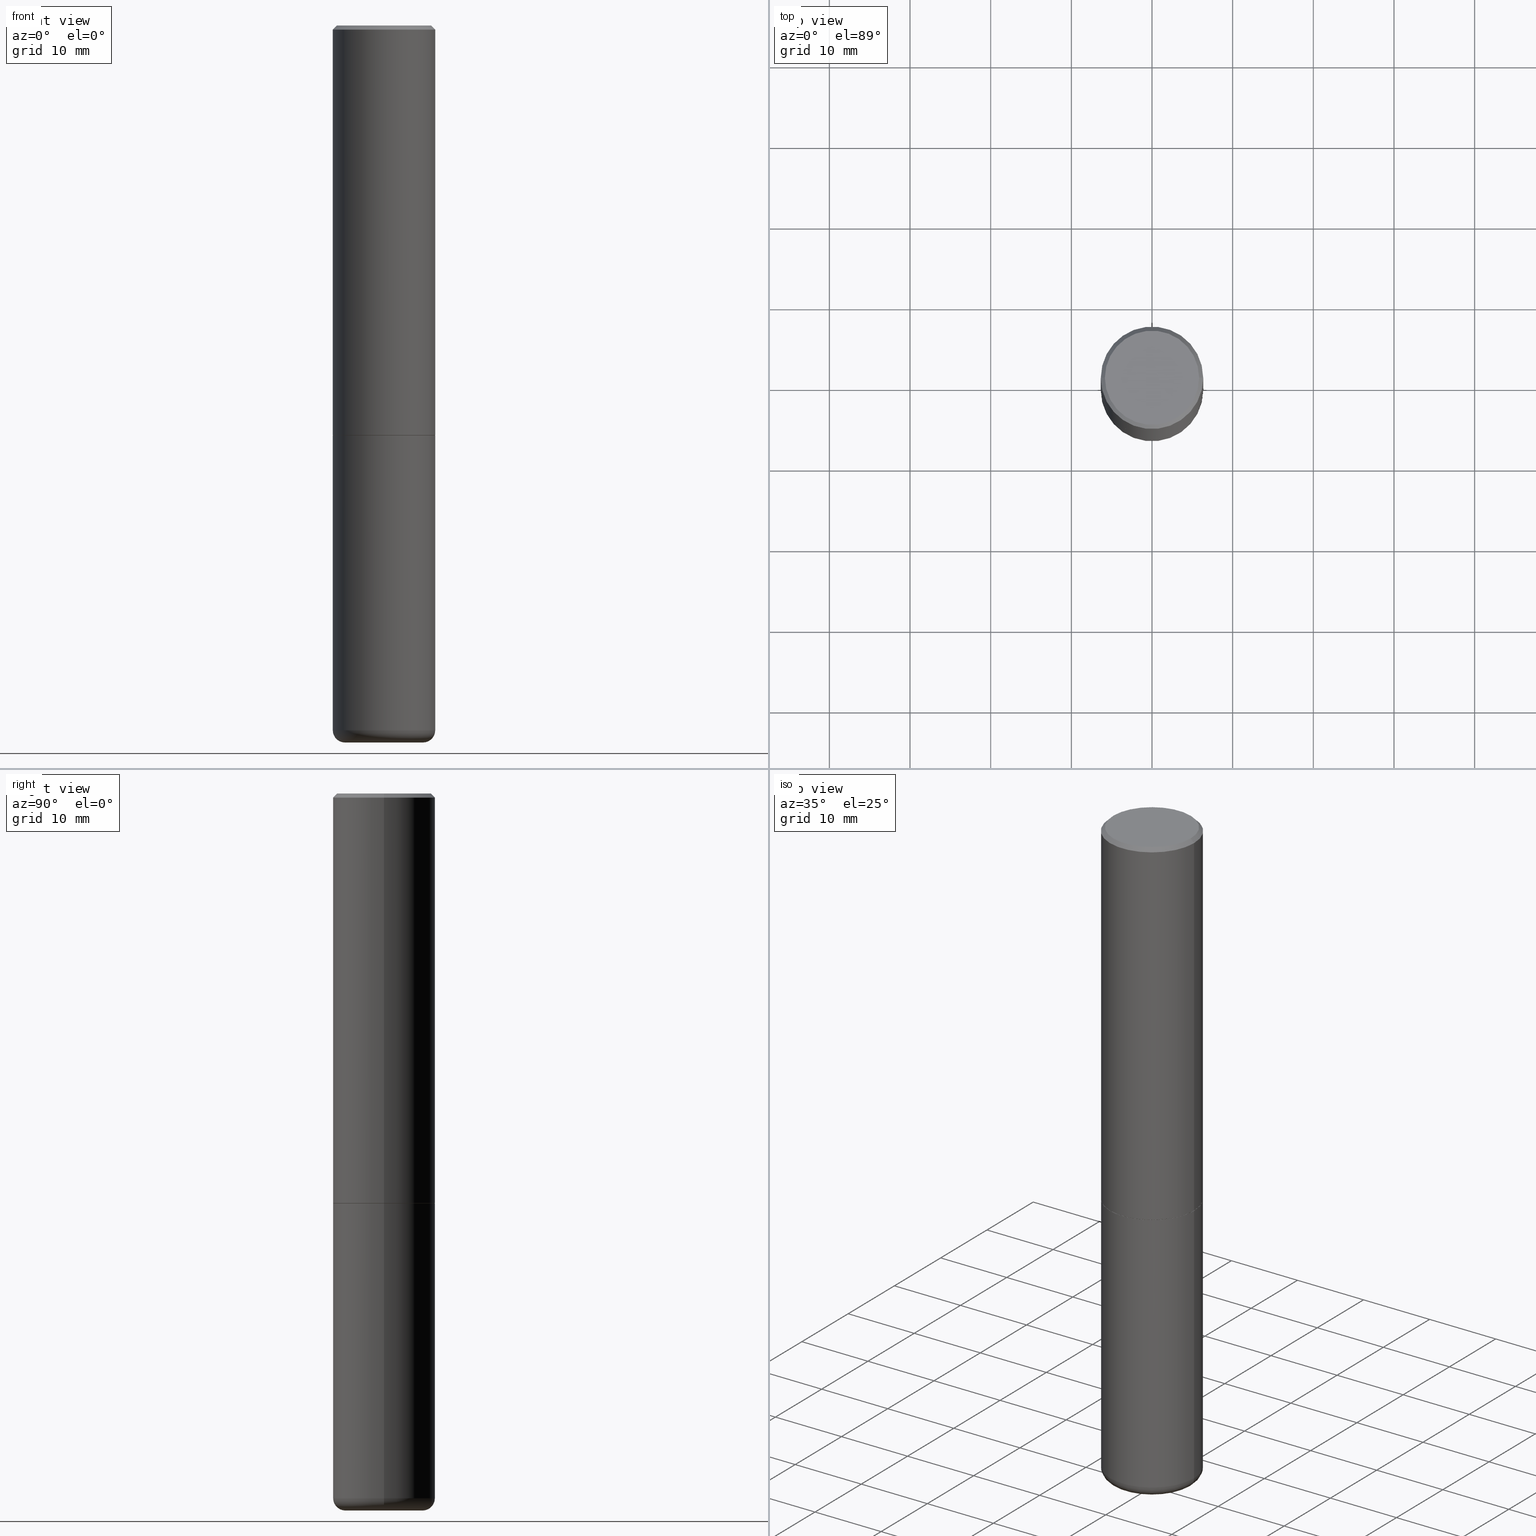
[diagram: canonical four-view strip — front | top / right | iso, engineering-drawing reading convention]
A machine part, canonical four-view strip (front | top / right | iso — engineering-drawing reading convention). The complete STEP part file that produces these views, byte-faithful:
ISO-10303-21;
HEADER;
FILE_DESCRIPTION (( 'STEP AP203' ),
    '1' );
FILE_NAME ('77192.STEP',
    '2024-03-06T16:21:48',
    ( '' ),
    ( '' ),
    'SwSTEP 2.0',
    'SolidWorks 2023',
    '' );
FILE_SCHEMA (( 'CONFIG_CONTROL_DESIGN' ));
ENDSEC;

DATA;
#1 = DIRECTION ( 'NONE',  ( -0.7071067811866199593, 7.493145998870616062E-15, 0.7071067811864750752 ) ) ;
#2 = VERTEX_POINT ( 'NONE', #172 ) ;
#3 = COORDINATED_UNIVERSAL_TIME_OFFSET ( 5, 0, .BEHIND. ) ;
#4 = DIRECTION ( 'NONE',  ( 1.000000000000000000, -6.982962677686266711E-15, 4.876176775795935793E-29 ) ) ;
#5 = ORIENTED_EDGE ( 'NONE', *, *, #243, .T. ) ;
#6 = ADVANCED_FACE ( 'NONE', ( #303 ), #402, .T. ) ;
#7 = LINE ( 'NONE', #395, #387 ) ;
#8 =( NAMED_UNIT ( * ) PLANE_ANGLE_UNIT ( ) SI_UNIT ( $, .RADIAN. ) );
#9 = FACE_OUTER_BOUND ( 'NONE', #35, .T. ) ;
#10 = VERTEX_POINT ( 'NONE', #368 ) ;
#11 = APPROVAL_STATUS ( 'not_yet_approved' ) ;
#12 = APPLICATION_PROTOCOL_DEFINITION ( 'international standard', 'config_control_design', 1994, #33 ) ;
#13 = SECURITY_CLASSIFICATION ( '', '', #304 ) ;
#14 = DIRECTION ( 'NONE',  ( -1.000000000000000000, 6.982962677686265922E-15, -4.876176775795935793E-29 ) ) ;
#15 = CARTESIAN_POINT ( 'NONE',  ( 4.890937612370273194E-29, -6.982962677686291165E-15, -2.000000000000000000 ) ) ;
#16 = APPROVAL_ROLE ( '' ) ;
#17 = DIRECTION ( 'NONE',  ( 0.7071067811866199593, -2.468850131083015945E-15, 0.7071067811864750752 ) ) ;
#18 = CARTESIAN_POINT ( 'NONE',  ( -0.2489999999999999991, -5.208412811295418518E-15, -2.000000000000000000 ) ) ;
#19 = APPROVAL_DATE_TIME ( #377, #199 ) ;
#20 = MANIFOLD_SOLID_BREP ( 'Body-Move/Copy2[1]', #90 ) ;
#21 = DIRECTION ( 'NONE',  ( 1.000000000000000000, -6.982962677686266711E-15, 0.000000000000000000 ) ) ;
#22 = EDGE_CURVE ( 'NONE', #299, #261, #34, .T. ) ;
#23 = DIRECTION ( 'NONE',  ( 1.000000000000000000, -6.982962677686267499E-15, 0.000000000000000000 ) ) ;
#24 = MANIFOLD_SOLID_BREP ( 'Body-Move/Copy2[2]', #164 ) ;
#25 = PLANE ( 'NONE',  #31 ) ;
#26 = ADVANCED_FACE ( 'NONE', ( #168 ), #369, .F. ) ;
#27 = AXIS2_PLACEMENT_3D ( 'NONE', #132, #106, #406 ) ;
#28 = CONICAL_SURFACE ( 'NONE', #320, 0.2489999999999999991, 0.7853981633975507526 ) ;
#29 = ORIENTED_EDGE ( 'NONE', *, *, #344, .F. ) ;
#30 = AXIS2_PLACEMENT_3D ( 'NONE', #50, #308, #141 ) ;
#31 = AXIS2_PLACEMENT_3D ( 'NONE', #408, #53, #276 ) ;
#32 = ORIENTED_EDGE ( 'NONE', *, *, #291, .T. ) ;
#33 = APPLICATION_CONTEXT ( 'configuration controlled 3d designs of mechanical parts and assemblies' ) ;
#34 = LINE ( 'NONE', #42, #176 ) ;
#35 = EDGE_LOOP ( 'NONE', ( #72, #133, #362, #169 ) ) ;
#36 = DIRECTION ( 'NONE',  ( 0.000000000000000000, 0.000000000000000000, 1.000000000000000000 ) ) ;
#37 = FACE_OUTER_BOUND ( 'NONE', #349, .T. ) ;
#38 = VERTEX_POINT ( 'NONE', #77 ) ;
#39 = CIRCLE ( 'NONE', #275, 0.2500000000000000000 ) ;
#40 = AXIS2_PLACEMENT_3D ( 'NONE', #206, #48, #213 ) ;
#41 = APPROVAL_DATE_TIME ( #228, #253 ) ;
#42 = CARTESIAN_POINT ( 'NONE',  ( -0.2500000000000000000, 1.776356839400250465E-15, -1.229733772563726445E-29 ) ) ;
#43 = ORIENTED_EDGE ( 'NONE', *, *, #389, .T. ) ;
#44 = DIRECTION ( 'NONE',  ( -2.445468806185136597E-29, 3.491481338843145583E-15, 1.000000000000000000 ) ) ;
#45 = CARTESIAN_POINT ( 'NONE',  ( 0.000000000000000000, 0.000000000000000000, 0.000000000000000000 ) ) ;
#46 = COORDINATED_UNIVERSAL_TIME_OFFSET ( 5, 0, .BEHIND. ) ;
#47 = DIRECTION ( 'NONE',  ( -2.445468806185136597E-29, 3.491481338843145583E-15, 1.000000000000000000 ) ) ;
#48 = DIRECTION ( 'NONE',  ( -2.445468806185136597E-29, 3.491481338843145583E-15, 1.000000000000000000 ) ) ;
#49 = CIRCLE ( 'NONE', #281, 0.2499999999999999167 ) ;
#50 = CARTESIAN_POINT ( 'NONE',  ( 4.890937612370273194E-29, -6.982962677686291165E-15, -2.000000000000000000 ) ) ;
#51 = LINE ( 'NONE', #246, #212 ) ;
#52 = CARTESIAN_POINT ( 'NONE',  ( 4.888492143564087591E-29, -6.979471196347447369E-15, -1.998999999999999888 ) ) ;
#53 = DIRECTION ( 'NONE',  ( 2.438088387897960049E-29, -3.491481338843145188E-15, -1.000000000000000000 ) ) ;
#54 = CARTESIAN_POINT ( 'NONE',  ( 8.412412693276869938E-29, -1.201069580562042103E-14, -3.439999999999999947 ) ) ;
#55 = AXIS2_PLACEMENT_3D ( 'NONE', #394, #44, #399 ) ;
#56 = VERTEX_POINT ( 'NONE', #208 ) ;
#57 = PLANE ( 'NONE',  #83 ) ;
#58 = ADVANCED_FACE ( 'NONE', ( #9 ), #100, .T. ) ;
#59 = DIRECTION ( 'NONE',  ( -0.7071067811865465735, 2.468850131082246805E-15, -0.7071067811865484609 ) ) ;
#60 = CONICAL_SURFACE ( 'NONE', #244, 0.2499999999999999167, 0.7853981633974469467 ) ;
#61 = AXIS2_PLACEMENT_3D ( 'NONE', #352, #178, #91 ) ;
#62 = ADVANCED_FACE ( 'NONE', ( #37 ), #328, .T. ) ;
#63 = ADVANCED_FACE ( 'NONE', ( #340 ), #398, .T. ) ;
#64 = ORIENTED_EDGE ( 'NONE', *, *, #403, .F. ) ;
#65 = LINE ( 'NONE', #289, #138 ) ;
#66 = VERTEX_POINT ( 'NONE', #162 ) ;
#67 = CIRCLE ( 'NONE', #397, 0.2299999999999999267 ) ;
#68 = AXIS2_PLACEMENT_3D ( 'NONE', #400, #114, #279 ) ;
#69 = DIRECTION ( 'NONE',  ( 1.000000000000000000, -6.982962677686266711E-15, 0.000000000000000000 ) ) ;
#70 = ORIENTED_EDGE ( 'NONE', *, *, #411, .F. ) ;
#71 = ADVANCED_FACE ( 'NONE', ( #171 ), #111, .T. ) ;
#72 = ORIENTED_EDGE ( 'NONE', *, *, #89, .F. ) ;
#73 = ORIENTED_EDGE ( 'NONE', *, *, #403, .T. ) ;
#74 = DIRECTION ( 'NONE',  ( -2.445468806185136877E-29, 3.491481338843145188E-15, 1.000000000000000000 ) ) ;
#75 = AXIS2_PLACEMENT_3D ( 'NONE', #52, #346, #21 ) ;
#76 = EDGE_CURVE ( 'NONE', #255, #38, #305, .T. ) ;
#77 = CARTESIAN_POINT ( 'NONE',  ( -0.2500000000000002776, -1.748293572161900530E-15, -1.998999999999999888 ) ) ;
#78 = COORDINATED_UNIVERSAL_TIME_OFFSET ( 5, 0, .BEHIND. ) ;
#79 = EDGE_LOOP ( 'NONE', ( #415, #43, #73, #288 ) ) ;
#80 = CARTESIAN_POINT ( 'NONE',  ( 0.1899999999999999745, -1.333745871438081265E-14, -3.439999999999999947 ) ) ;
#81 = APPROVAL ( #11, 'UNSPECIFIED' ) ;
#82 = ADVANCED_BREP_SHAPE_REPRESENTATION ( '77192', ( #20, #24, #122 ), #189 ) ;
#83 = AXIS2_PLACEMENT_3D ( 'NONE', #118, #180, #86 ) ;
#84 = CC_DESIGN_SECURITY_CLASSIFICATION ( #13, ( #251 ) ) ;
#85 = CARTESIAN_POINT ( 'NONE',  ( -0.2500000000000000000, -7.720472402253106025E-15, -2.000000000000000000 ) ) ;
#86 = DIRECTION ( 'NONE',  ( 1.000000000000000000, -6.982962677686265922E-15, 4.876176775795935793E-29 ) ) ;
#87 = CARTESIAN_POINT ( 'NONE',  ( 4.890937612370287172E-31, -6.982962677686310098E-17, -0.02000000000000005593 ) ) ;
#88 = CALENDAR_DATE ( 2024, 6, 3 ) ;
#89 = EDGE_CURVE ( 'NONE', #2, #299, #374, .T. ) ;
#90 = CLOSED_SHELL ( 'NONE', ( #412, #371, #26, #63, #58, #62 ) ) ;
#91 = DIRECTION ( 'NONE',  ( 1.000000000000000000, -6.982962677686273021E-15, 0.000000000000000000 ) ) ;
#92 = CIRCLE ( 'NONE', #61, 0.1899999999999999745 ) ;
#93 = CIRCLE ( 'NONE', #237, 0.2489999999999999991 ) ;
#94 = EDGE_CURVE ( 'NONE', #123, #261, #258, .T. ) ;
#95 = CARTESIAN_POINT ( 'NONE',  ( 0.2489999999999999991, -8.721720384430171040E-15, -2.000000000000000000 ) ) ;
#96 = ORIENTED_EDGE ( 'NONE', *, *, #76, .T. ) ;
#97 = EDGE_LOOP ( 'NONE', ( #233, #163, #333, #209 ) ) ;
#98 = EDGE_CURVE ( 'NONE', #198, #224, #250, .T. ) ;
#99 = ORIENTED_EDGE ( 'NONE', *, *, #220, .F. ) ;
#100 = TOROIDAL_SURFACE ( 'NONE', #409, 0.1899999999999999745, 0.05999999999999995615 ) ;
#101 = AXIS2_PLACEMENT_3D ( 'NONE', #314, #375, #23 ) ;
#102 = PERSON_AND_ORGANIZATION ( #152, #286 ) ;
#103 = ORIENTED_EDGE ( 'NONE', *, *, #380, .T. ) ;
#104 = CARTESIAN_POINT ( 'NONE',  ( 2.087702828670439639E-46, -2.980686340760894400E-32, -8.537024980200822558E-18 ) ) ;
#105 = DATE_AND_TIME ( #392, #358 ) ;
#106 = DIRECTION ( 'NONE',  ( -2.445468806185136597E-29, 3.491481338843145583E-15, 1.000000000000000000 ) ) ;
#107 = ORIENTED_EDGE ( 'NONE', *, *, #98, .T. ) ;
#108 = DIRECTION ( 'NONE',  ( 1.000000000000000000, -6.982962677686265133E-15, 4.883557194083112340E-29 ) ) ;
#109 = CIRCLE ( 'NONE', #404, 0.2500000000000002776 ) ;
#110 = PERSON_AND_ORGANIZATION_ROLE ( 'classification_officer' ) ;
#111 = CYLINDRICAL_SURFACE ( 'NONE', #379, 0.2500000000000001110 ) ;
#112 = MECHANICAL_CONTEXT ( 'NONE', #33, 'mechanical' ) ;
#113 = ADVANCED_FACE ( 'NONE', ( #116 ), #57, .F. ) ;
#114 = DIRECTION ( 'NONE',  ( -2.445468806185136597E-29, 3.491481338843145583E-15, 1.000000000000000000 ) ) ;
#115 = CIRCLE ( 'NONE', #30, 0.2500000000000000000 ) ;
#116 = FACE_OUTER_BOUND ( 'NONE', #256, .T. ) ;
#117 = DIRECTION ( 'NONE',  ( 1.000000000000000000, -6.982962677686274599E-15, 0.000000000000000000 ) ) ;
#118 = CARTESIAN_POINT ( 'NONE',  ( 4.890937612370273194E-29, -6.982962677686291165E-15, -2.000000000000000000 ) ) ;
#119 = AXIS2_PLACEMENT_3D ( 'NONE', #332, #137, #301 ) ;
#120 = LOCAL_TIME ( 11, 21, 48.00000000000000000, #238 ) ;
#121 = ORIENTED_EDGE ( 'NONE', *, *, #267, .F. ) ;
#122 = AXIS2_PLACEMENT_3D ( 'NONE', #338, #36, #196 ) ;
#123 = VERTEX_POINT ( 'NONE', #187 ) ;
#124 = UNCERTAINTY_MEASURE_WITH_UNIT (LENGTH_MEASURE( 1.000000000000000082E-05 ), #201, 'distance_accuracy_value', 'NONE');
#125 = ORIENTED_EDGE ( 'NONE', *, *, #291, .F. ) ;
#126 = CARTESIAN_POINT ( 'NONE',  ( 0.2500000000000001110, -1.745740669421567467E-15, 1.219044193948984509E-29 ) ) ;
#127 = CARTESIAN_POINT ( 'NONE',  ( -0.1899999999999999745, -1.066066460767623105E-14, -3.439999999999999947 ) ) ;
#128 = EDGE_LOOP ( 'NONE', ( #383, #96, #359, #190 ) ) ;
#129 = AXIS2_PLACEMENT_3D ( 'NONE', #45, #47, #4 ) ;
#130 = DIRECTION ( 'NONE',  ( -2.445468806185136597E-29, 3.491481338843145583E-15, 1.000000000000000000 ) ) ;
#131 = CALENDAR_DATE ( 2024, 6, 3 ) ;
#132 = CARTESIAN_POINT ( 'NONE',  ( 2.087702828670439639E-46, -2.980686340760894400E-32, -8.537024980200822558E-18 ) ) ;
#133 = ORIENTED_EDGE ( 'NONE', *, *, #267, .T. ) ;
#134 = CYLINDRICAL_SURFACE ( 'NONE', #55, 0.2500000000000000000 ) ;
#135 = CARTESIAN_POINT ( 'NONE',  ( 0.000000000000000000, 0.000000000000000000, 0.000000000000000000 ) ) ;
#136 = EDGE_LOOP ( 'NONE', ( #283, #107 ) ) ;
#137 = DIRECTION ( 'NONE',  ( 2.438088387897960049E-29, -3.491481338843145188E-15, -1.000000000000000000 ) ) ;
#138 = VECTOR ( 'NONE', #59, 39.37007874015748143 ) ;
#139 = APPROVAL_ROLE ( '' ) ;
#140 = ADVANCED_FACE ( 'NONE', ( #144 ), #60, .T. ) ;
#141 = DIRECTION ( 'NONE',  ( 1.000000000000000000, -6.982962677686266711E-15, 0.000000000000000000 ) ) ;
#142 = FACE_OUTER_BOUND ( 'NONE', #79, .T. ) ;
#143 = VECTOR ( 'NONE', #191, 39.37007874015748143 ) ;
#144 = FACE_OUTER_BOUND ( 'NONE', #391, .T. ) ;
#145 = ADVANCED_FACE ( 'NONE', ( #142 ), #405, .T. ) ;
#146 = DIRECTION ( 'NONE',  ( 1.000000000000000000, -6.982962677686266711E-15, 0.000000000000000000 ) ) ;
#147 = DIRECTION ( 'NONE',  ( 1.000000000000000000, -6.982962677686270655E-15, 0.000000000000000000 ) ) ;
#148 = CC_DESIGN_DATE_AND_TIME_ASSIGNMENT ( #173, #370, ( #225 ) ) ;
#149 = AXIS2_PLACEMENT_3D ( 'NONE', #390, #229, #297 ) ;
#150 = CIRCLE ( 'NONE', #298, 0.2489999999999999991 ) ;
#151 = EDGE_CURVE ( 'NONE', #414, #299, #39, .T. ) ;
#152 = PERSON ( 'UNSPECIFIED', 'UNSPECIFIED', 'UNSPECIFIED', ('UNSPECIFIED'), ('UNSPECIFIED'), ('UNSPECIFIED') ) ;
#153 = DIRECTION ( 'NONE',  ( 1.000000000000000000, -6.982962677686266711E-15, 0.000000000000000000 ) ) ;
#154 = AXIS2_PLACEMENT_3D ( 'NONE', #210, #158, #14 ) ;
#155 = AXIS2_PLACEMENT_3D ( 'NONE', #54, #241, #277 ) ;
#156 = EDGE_LOOP ( 'NONE', ( #157, #32 ) ) ;
#157 = ORIENTED_EDGE ( 'NONE', *, *, #94, .T. ) ;
#158 = DIRECTION ( 'NONE',  ( 2.438088387897960049E-29, -3.491481338843145188E-15, -1.000000000000000000 ) ) ;
#159 = ORIENTED_EDGE ( 'NONE', *, *, #76, .F. ) ;
#160 = PRODUCT_RELATED_PRODUCT_CATEGORY ( 'detail', '', ( #183 ) ) ;
#161 = APPROVAL_ROLE ( '' ) ;
#162 = CARTESIAN_POINT ( 'NONE',  ( 0.2500000000000002776, -8.725211865769015625E-15, -1.998999999999999888 ) ) ;
#163 = ORIENTED_EDGE ( 'NONE', *, *, #89, .T. ) ;
#164 = CLOSED_SHELL ( 'NONE', ( #6, #71, #215, #140, #145, #327, #113, #165 ) ) ;
#165 = ADVANCED_FACE ( 'NONE', ( #376 ), #25, .F. ) ;
#166 = AXIS2_PLACEMENT_3D ( 'NONE', #385, #416, #108 ) ;
#167 = PERSON_AND_ORGANIZATION_ROLE ( 'creator' ) ;
#168 = FACE_OUTER_BOUND ( 'NONE', #156, .T. ) ;
#169 = ORIENTED_EDGE ( 'NONE', *, *, #243, .F. ) ;
#170 = APPLICATION_PROTOCOL_DEFINITION ( 'international standard', 'config_control_design', 1994, #266 ) ;
#171 = FACE_OUTER_BOUND ( 'NONE', #386, .T. ) ;
#172 = CARTESIAN_POINT ( 'NONE',  ( -0.1899999999999999745, -1.055224622711349575E-14, -3.500000000000000000 ) ) ;
#173 = DATE_AND_TIME ( #418, #192 ) ;
#174 = DIRECTION ( 'NONE',  ( -2.445468806185136597E-29, 3.491481338843145583E-15, 1.000000000000000000 ) ) ;
#175 = ORIENTED_EDGE ( 'NONE', *, *, #94, .F. ) ;
#176 = VECTOR ( 'NONE', #202, 39.37007874015748143 ) ;
#177 = CC_DESIGN_APPROVAL ( #81, ( #251 ) ) ;
#178 = DIRECTION ( 'NONE',  ( -2.445468806185136597E-29, 3.491481338843145583E-15, 1.000000000000000000 ) ) ;
#179 = CARTESIAN_POINT ( 'NONE',  ( 0.2499999999999999722, -1.375643647504198770E-14, -3.439999999999999947 ) ) ;
#180 = DIRECTION ( 'NONE',  ( -2.438088387897960049E-29, 3.491481338843145188E-15, 1.000000000000000000 ) ) ;
#181 = CC_DESIGN_PERSON_AND_ORGANIZATION_ASSIGNMENT ( #295, #331, ( #225 ) ) ;
#182 = DIRECTION ( 'NONE',  ( -6.982962677686266711E-15, -1.000000000000000000, 3.491481338843145583E-15 ) ) ;
#183 = PRODUCT ( '77192', '77192', '', ( #112 ) ) ;
#184 = CIRCLE ( 'NONE', #75, 0.2500000000000002776 ) ;
#185 = DIRECTION ( 'NONE',  ( -2.445468806185136597E-29, 3.491481338843145583E-15, 1.000000000000000000 ) ) ;
#186 = DATE_AND_TIME ( #88, #120 ) ;
#187 = CARTESIAN_POINT ( 'NONE',  ( 0.2500000000000000000, -8.728703347107857054E-15, -2.000000000000000000 ) ) ;
#188 = EDGE_CURVE ( 'NONE', #10, #414, #296, .T. ) ;
#189 =( GEOMETRIC_REPRESENTATION_CONTEXT ( 3 ) GLOBAL_UNCERTAINTY_ASSIGNED_CONTEXT ( ( #124 ) ) GLOBAL_UNIT_ASSIGNED_CONTEXT ( ( #201, #8, #388 ) ) REPRESENTATION_CONTEXT ( 'NONE', 'WORKASPACE' ) );
#190 = ORIENTED_EDGE ( 'NONE', *, *, #252, .F. ) ;
#191 = DIRECTION ( 'NONE',  ( 0.7071067811865465735, -7.319954787623252890E-15, -0.7071067811865484609 ) ) ;
#192 = LOCAL_TIME ( 11, 21, 48.00000000000000000, #46 ) ;
#193 = ORIENTED_EDGE ( 'NONE', *, *, #335, .F. ) ;
#194 = AXIS2_PLACEMENT_3D ( 'NONE', #87, #274, #218 ) ;
#195 = FACE_OUTER_BOUND ( 'NONE', #97, .T. ) ;
#196 = DIRECTION ( 'NONE',  ( 1.000000000000000000, 0.000000000000000000, 0.000000000000000000 ) ) ;
#197 = DIRECTION ( 'NONE',  ( 1.000000000000000000, -6.982962677686265133E-15, 4.883557194083112340E-29 ) ) ;
#198 = VERTEX_POINT ( 'NONE', #240 ) ;
#199 = APPROVAL ( #313, 'UNSPECIFIED' ) ;
#200 = CARTESIAN_POINT ( 'NONE',  ( 4.888492143564087591E-29, -6.979471196347447369E-15, -1.998999999999999888 ) ) ;
#201 =( CONVERSION_BASED_UNIT ( 'INCH', #263 ) LENGTH_UNIT ( ) NAMED_UNIT ( #355 ) );
#202 = DIRECTION ( 'NONE',  ( -2.445468806185136877E-29, 3.491481338843145188E-15, 1.000000000000000000 ) ) ;
#203 = EDGE_LOOP ( 'NONE', ( #326, #103, #316, #193 ) ) ;
#204 = VERTEX_POINT ( 'NONE', #310 ) ;
#205 = LOCAL_TIME ( 11, 21, 48.00000000000000000, #78 ) ;
#206 = CARTESIAN_POINT ( 'NONE',  ( 8.559140821647976968E-29, -1.222018468595100934E-14, -3.500000000000000000 ) ) ;
#207 =( LENGTH_UNIT ( ) NAMED_UNIT ( * ) SI_UNIT ( $, .METRE. ) );
#208 = CARTESIAN_POINT ( 'NONE',  ( 0.2499999999999999167, -1.784954126219745400E-15, -0.02000000000000005593 ) ) ;
#209 = ORIENTED_EDGE ( 'NONE', *, *, #188, .F. ) ;
#210 = CARTESIAN_POINT ( 'NONE',  ( 8.559140821647976968E-29, -1.222018468595100934E-14, -3.500000000000000000 ) ) ;
#211 = CARTESIAN_POINT ( 'NONE',  ( 4.890937612370287172E-31, -6.982962677686310098E-17, -0.02000000000000005593 ) ) ;
#212 = VECTOR ( 'NONE', #282, 39.37007874015748143 ) ;
#213 = DIRECTION ( 'NONE',  ( 1.000000000000000000, -6.982962677686273021E-15, 0.000000000000000000 ) ) ;
#214 = FACE_OUTER_BOUND ( 'NONE', #203, .T. ) ;
#215 = ADVANCED_FACE ( 'NONE', ( #214 ), #325, .T. ) ;
#216 = CARTESIAN_POINT ( 'NONE',  ( -0.2299999999999999267, 1.640996229256272125E-15, -8.537024980212177841E-18 ) ) ;
#217 = SHAPE_DEFINITION_REPRESENTATION ( #382, #82 ) ;
#218 = DIRECTION ( 'NONE',  ( -1.000000000000000000, 6.982962677686267499E-15, 0.000000000000000000 ) ) ;
#219 = CARTESIAN_POINT ( 'NONE',  ( 4.890937612370273194E-29, -6.982962677686291165E-15, -2.000000000000000000 ) ) ;
#220 = EDGE_CURVE ( 'NONE', #364, #255, #93, .T. ) ;
#221 = EDGE_CURVE ( 'NONE', #204, #56, #49, .T. ) ;
#222 = AXIS2_PLACEMENT_3D ( 'NONE', #15, #361, #69 ) ;
#223 = EDGE_LOOP ( 'NONE', ( #294, #5, #393, #125 ) ) ;
#224 = VERTEX_POINT ( 'NONE', #216 ) ;
#225 = PRODUCT_DEFINITION ( 'UNKNOWN', '', #251, #242 ) ;
#226 = CIRCLE ( 'NONE', #101, 0.2499999999999999167 ) ;
#227 = EDGE_LOOP ( 'NONE', ( #318, #322, #175, #309 ) ) ;
#228 = DATE_AND_TIME ( #131, #205 ) ;
#229 = DIRECTION ( 'NONE',  ( -2.445468806185136597E-29, 3.491481338843145583E-15, 1.000000000000000000 ) ) ;
#230 = ORIENTED_EDGE ( 'NONE', *, *, #347, .T. ) ;
#231 = APPROVAL_DATE_TIME ( #105, #81 ) ;
#232 = DIRECTION ( 'NONE',  ( 1.000000000000000000, -6.982962677686266711E-15, 4.876176775795935793E-29 ) ) ;
#233 = ORIENTED_EDGE ( 'NONE', *, *, #344, .T. ) ;
#234 = CARTESIAN_POINT ( 'NONE',  ( 0.2499999999999999167, -1.784954126219745400E-15, -0.02000000000000005593 ) ) ;
#235 = PERSON_AND_ORGANIZATION ( #152, #286 ) ;
#236 = DIRECTION ( 'NONE',  ( -2.445468806185136597E-29, 3.491481338843145583E-15, 1.000000000000000000 ) ) ;
#237 = AXIS2_PLACEMENT_3D ( 'NONE', #312, #185, #348 ) ;
#238 = COORDINATED_UNIVERSAL_TIME_OFFSET ( 5, 0, .BEHIND. ) ;
#239 = PERSON_AND_ORGANIZATION ( #152, #286 ) ;
#240 = CARTESIAN_POINT ( 'NONE',  ( 0.2299999999999999267, -1.681434332853598617E-15, -8.537024980189327067E-18 ) ) ;
#241 = DIRECTION ( 'NONE',  ( -2.445468806185136597E-29, 3.491481338843145583E-15, 1.000000000000000000 ) ) ;
#242 = DESIGN_CONTEXT ( 'detailed design', #266, 'design' ) ;
#243 = EDGE_CURVE ( 'NONE', #299, #414, #245, .T. ) ;
#244 = AXIS2_PLACEMENT_3D ( 'NONE', #378, #272, #248 ) ;
#245 = CIRCLE ( 'NONE', #155, 0.2500000000000000000 ) ;
#246 = CARTESIAN_POINT ( 'NONE',  ( -0.2500000000000001110, 1.776356839400251254E-15, -1.229733772563727006E-29 ) ) ;
#247 = CARTESIAN_POINT ( 'NONE',  ( 0.2489999999999999991, -8.721720384430171040E-15, -2.000000000000000000 ) ) ;
#248 = DIRECTION ( 'NONE',  ( -1.000000000000000000, 6.982962677686267499E-15, 0.000000000000000000 ) ) ;
#249 = DIRECTION ( 'NONE',  ( -2.445468806185136597E-29, 3.491481338843145583E-15, 1.000000000000000000 ) ) ;
#250 = CIRCLE ( 'NONE', #27, 0.2299999999999999267 ) ;
#251 = PRODUCT_DEFINITION_FORMATION_WITH_SPECIFIED_SOURCE ( 'ANY', '', #183, .NOT_KNOWN. ) ;
#252 = EDGE_CURVE ( 'NONE', #364, #66, #373, .T. ) ;
#253 = APPROVAL ( #268, 'UNSPECIFIED' ) ;
#254 = VECTOR ( 'NONE', #17, 39.37007874015748143 ) ;
#255 = VERTEX_POINT ( 'NONE', #18 ) ;
#256 = EDGE_LOOP ( 'NONE', ( #99, #384 ) ) ;
#257 = EDGE_CURVE ( 'NONE', #56, #204, #226, .T. ) ;
#258 = CIRCLE ( 'NONE', #149, 0.2500000000000000000 ) ;
#259 = DIRECTION ( 'NONE',  ( -1.000000000000000000, 7.105427357600997914E-15, 0.000000000000000000 ) ) ;
#260 = VECTOR ( 'NONE', #74, 39.37007874015748143 ) ;
#261 = VERTEX_POINT ( 'NONE', #85 ) ;
#262 = DIRECTION ( 'NONE',  ( 1.000000000000000000, -6.982962677686267499E-15, 4.876225828469310563E-29 ) ) ;
#263 = LENGTH_MEASURE_WITH_UNIT ( LENGTH_MEASURE( 0.02539999999999999897 ), #207 );
#264 = DIRECTION ( 'NONE',  ( 7.105427357601001859E-15, 1.000000000000000000, -3.491481338843145583E-15 ) ) ;
#265 = ORIENTED_EDGE ( 'NONE', *, *, #315, .T. ) ;
#266 = APPLICATION_CONTEXT ( 'configuration controlled 3d designs of mechanical parts and assemblies' ) ;
#267 = EDGE_CURVE ( 'NONE', #2, #10, #92, .T. ) ;
#268 = APPROVAL_STATUS ( 'not_yet_approved' ) ;
#269 = LOCAL_TIME ( 11, 21, 48.00000000000000000, #278 ) ;
#270 = PERSON_AND_ORGANIZATION ( #152, #286 ) ;
#271 = CC_DESIGN_DATE_AND_TIME_ASSIGNMENT ( #186, #407, ( #13 ) ) ;
#272 = DIRECTION ( 'NONE',  ( 2.445468806185136597E-29, -3.491481338843145583E-15, -1.000000000000000000 ) ) ;
#273 = EDGE_LOOP ( 'NONE', ( #159, #337, #290, #357 ) ) ;
#274 = DIRECTION ( 'NONE',  ( 2.445468806185136597E-29, -3.491481338843145583E-15, -1.000000000000000000 ) ) ;
#275 = AXIS2_PLACEMENT_3D ( 'NONE', #317, #249, #147 ) ;
#276 = DIRECTION ( 'NONE',  ( -1.000000000000000000, 6.982962677686265922E-15, -4.876176775795935793E-29 ) ) ;
#277 = DIRECTION ( 'NONE',  ( 1.000000000000000000, -6.982962677686270655E-15, 0.000000000000000000 ) ) ;
#278 = COORDINATED_UNIVERSAL_TIME_OFFSET ( 5, 0, .BEHIND. ) ;
#279 = DIRECTION ( 'NONE',  ( 1.000000000000000000, -6.982962677686266711E-15, 4.876176775795935793E-29 ) ) ;
#280 = VECTOR ( 'NONE', #1, 39.37007874015748143 ) ;
#281 = AXIS2_PLACEMENT_3D ( 'NONE', #211, #372, #401 ) ;
#282 = DIRECTION ( 'NONE',  ( -2.445468806185136877E-29, 3.491481338843145188E-15, 1.000000000000000000 ) ) ;
#283 = ORIENTED_EDGE ( 'NONE', *, *, #411, .T. ) ;
#284 = EDGE_CURVE ( 'NONE', #255, #364, #150, .T. ) ;
#285 = FACE_OUTER_BOUND ( 'NONE', #273, .T. ) ;
#286 = ORGANIZATION ( 'UNSPECIFIED', 'UNSPECIFIED', '' ) ;
#287 = CARTESIAN_POINT ( 'NONE',  ( 4.890937612370273194E-29, -6.982962677686291165E-15, -2.000000000000000000 ) ) ;
#288 = ORIENTED_EDGE ( 'NONE', *, *, #221, .F. ) ;
#289 = CARTESIAN_POINT ( 'NONE',  ( -0.2499999999999999167, 1.675911042644703182E-15, -0.02000000000000005593 ) ) ;
#290 = ORIENTED_EDGE ( 'NONE', *, *, #252, .T. ) ;
#291 = EDGE_CURVE ( 'NONE', #261, #123, #115, .T. ) ;
#292 = PERSON_AND_ORGANIZATION_ROLE ( 'design_owner' ) ;
#293 = CARTESIAN_POINT ( 'NONE',  ( -0.2489999999999999991, -5.213711265643641709E-15, -2.000000000000000000 ) ) ;
#294 = ORIENTED_EDGE ( 'NONE', *, *, #22, .F. ) ;
#295 = PERSON_AND_ORGANIZATION ( #152, #286 ) ;
#296 = CIRCLE ( 'NONE', #354, 0.05999999999999994227 ) ;
#297 = DIRECTION ( 'NONE',  ( 1.000000000000000000, -6.982962677686266711E-15, 0.000000000000000000 ) ) ;
#298 = AXIS2_PLACEMENT_3D ( 'NONE', #219, #342, #146 ) ;
#299 = VERTEX_POINT ( 'NONE', #345 ) ;
#300 = PERSON_AND_ORGANIZATION ( #152, #286 ) ;
#301 = DIRECTION ( 'NONE',  ( -1.000000000000000000, 6.982962677686265922E-15, -4.876176775795935793E-29 ) ) ;
#302 = ORIENTED_EDGE ( 'NONE', *, *, #380, .F. ) ;
#303 = FACE_OUTER_BOUND ( 'NONE', #128, .T. ) ;
#304 = SECURITY_CLASSIFICATION_LEVEL ( 'unclassified' ) ;
#305 = LINE ( 'NONE', #293, #280 ) ;
#306 = APPROVAL_PERSON_ORGANIZATION ( #235, #81, #161 ) ;
#307 = CC_DESIGN_PERSON_AND_ORGANIZATION_ASSIGNMENT ( #102, #292, ( #183 ) ) ;
#308 = DIRECTION ( 'NONE',  ( -2.445468806185136597E-29, 3.491481338843145583E-15, 1.000000000000000000 ) ) ;
#309 = ORIENTED_EDGE ( 'NONE', *, *, #341, .F. ) ;
#310 = CARTESIAN_POINT ( 'NONE',  ( -0.2499999999999999167, 1.675911042644703182E-15, -0.02000000000000005593 ) ) ;
#311 = ORIENTED_EDGE ( 'NONE', *, *, #257, .F. ) ;
#312 = CARTESIAN_POINT ( 'NONE',  ( 4.890937612370273194E-29, -6.982962677686291165E-15, -2.000000000000000000 ) ) ;
#313 = APPROVAL_STATUS ( 'not_yet_approved' ) ;
#314 = CARTESIAN_POINT ( 'NONE',  ( 4.890937612370287172E-31, -6.982962677686310098E-17, -0.02000000000000005593 ) ) ;
#315 = EDGE_CURVE ( 'NONE', #66, #38, #184, .T. ) ;
#316 = ORIENTED_EDGE ( 'NONE', *, *, #257, .T. ) ;
#317 = CARTESIAN_POINT ( 'NONE',  ( 8.412412693276869938E-29, -1.201069580562042103E-14, -3.439999999999999947 ) ) ;
#318 = ORIENTED_EDGE ( 'NONE', *, *, #151, .T. ) ;
#319 = CC_DESIGN_PERSON_AND_ORGANIZATION_ASSIGNMENT ( #336, #167, ( #251 ) ) ;
#320 = AXIS2_PLACEMENT_3D ( 'NONE', #287, #321, #153 ) ;
#321 = DIRECTION ( 'NONE',  ( -2.445468806185136597E-29, 3.491481338843145583E-15, 1.000000000000000000 ) ) ;
#322 = ORIENTED_EDGE ( 'NONE', *, *, #22, .T. ) ;
#323 = DIRECTION ( 'NONE',  ( -2.445468806185136597E-29, 3.491481338843145583E-15, 1.000000000000000000 ) ) ;
#324 = CC_DESIGN_APPROVAL ( #253, ( #225 ) ) ;
#325 = CONICAL_SURFACE ( 'NONE', #194, 0.2499999999999999167, 0.7853981633974469467 ) ;
#326 = ORIENTED_EDGE ( 'NONE', *, *, #98, .F. ) ;
#327 = ADVANCED_FACE ( 'NONE', ( #285 ), #28, .T. ) ;
#328 = PLANE ( 'NONE',  #154 ) ;
#329 = ORIENTED_EDGE ( 'NONE', *, *, #221, .T. ) ;
#330 = DIRECTION ( 'NONE',  ( 1.000000000000000000, -6.982962677686266711E-15, 0.000000000000000000 ) ) ;
#331 = PERSON_AND_ORGANIZATION_ROLE ( 'creator' ) ;
#332 = CARTESIAN_POINT ( 'NONE',  ( 3.364826205900701146E-29, -9.168441072617700951E-15, -2.000000000000000000 ) ) ;
#333 = ORIENTED_EDGE ( 'NONE', *, *, #151, .F. ) ;
#334 = LINE ( 'NONE', #126, #260 ) ;
#335 = EDGE_CURVE ( 'NONE', #224, #204, #65, .T. ) ;
#336 = PERSON_AND_ORGANIZATION ( #152, #286 ) ;
#337 = ORIENTED_EDGE ( 'NONE', *, *, #284, .T. ) ;
#338 = CARTESIAN_POINT ( 'NONE',  ( 0.000000000000000000, 0.000000000000000000, 0.000000000000000000 ) ) ;
#339 = CARTESIAN_POINT ( 'NONE',  ( 8.412412693276869938E-29, -1.201069580562042103E-14, -3.439999999999999947 ) ) ;
#340 = FACE_OUTER_BOUND ( 'NONE', #223, .T. ) ;
#341 = EDGE_CURVE ( 'NONE', #414, #123, #7, .T. ) ;
#342 = DIRECTION ( 'NONE',  ( -2.445468806185136597E-29, 3.491481338843145583E-15, 1.000000000000000000 ) ) ;
#343 = AXIS2_PLACEMENT_3D ( 'NONE', #127, #264, #259 ) ;
#344 = EDGE_CURVE ( 'NONE', #10, #2, #367, .T. ) ;
#345 = CARTESIAN_POINT ( 'NONE',  ( -0.2499999999999999722, -1.023433896622016898E-14, -3.439999999999999947 ) ) ;
#346 = DIRECTION ( 'NONE',  ( -2.445468806185136597E-29, 3.491481338843145583E-15, 1.000000000000000000 ) ) ;
#347 = EDGE_CURVE ( 'NONE', #38, #204, #51, .T. ) ;
#348 = DIRECTION ( 'NONE',  ( 1.000000000000000000, -6.982962677686266711E-15, 0.000000000000000000 ) ) ;
#349 = EDGE_LOOP ( 'NONE', ( #29, #121 ) ) ;
#350 = APPROVAL_PERSON_ORGANIZATION ( #239, #253, #139 ) ;
#351 = CALENDAR_DATE ( 2024, 6, 3 ) ;
#352 = CARTESIAN_POINT ( 'NONE',  ( 8.559140821647976968E-29, -1.222018468595100934E-14, -3.500000000000000000 ) ) ;
#353 = CC_DESIGN_PERSON_AND_ORGANIZATION_ASSIGNMENT ( #396, #110, ( #13 ) ) ;
#354 = AXIS2_PLACEMENT_3D ( 'NONE', #80, #182, #117 ) ;
#355 = DIMENSIONAL_EXPONENTS ( 1.000000000000000000, 0.000000000000000000, 0.000000000000000000, 0.000000000000000000, 0.000000000000000000, 0.000000000000000000, 0.000000000000000000 ) ;
#356 = ORIENTED_EDGE ( 'NONE', *, *, #335, .T. ) ;
#357 = ORIENTED_EDGE ( 'NONE', *, *, #389, .F. ) ;
#358 = LOCAL_TIME ( 11, 21, 48.00000000000000000, #3 ) ;
#359 = ORIENTED_EDGE ( 'NONE', *, *, #315, .F. ) ;
#360 = LINE ( 'NONE', #234, #143 ) ;
#361 = DIRECTION ( 'NONE',  ( -2.445468806185136597E-29, 3.491481338843145583E-15, 1.000000000000000000 ) ) ;
#362 = ORIENTED_EDGE ( 'NONE', *, *, #188, .T. ) ;
#363 = FACE_OUTER_BOUND ( 'NONE', #227, .T. ) ;
#364 = VERTEX_POINT ( 'NONE', #95 ) ;
#365 = DIRECTION ( 'NONE',  ( -2.445468806185136877E-29, 3.491481338843145188E-15, 1.000000000000000000 ) ) ;
#366 = PERSON_AND_ORGANIZATION_ROLE ( 'design_supplier' ) ;
#367 = CIRCLE ( 'NONE', #40, 0.1899999999999999745 ) ;
#368 = CARTESIAN_POINT ( 'NONE',  ( 0.1899999999999999745, -1.354694759471140096E-14, -3.500000000000000000 ) ) ;
#369 = PLANE ( 'NONE',  #119 ) ;
#370 = DATE_TIME_ROLE ( 'creation_date' ) ;
#371 = ADVANCED_FACE ( 'NONE', ( #195 ), #381, .T. ) ;
#372 = DIRECTION ( 'NONE',  ( -2.445468806185136597E-29, 3.491481338843145583E-15, 1.000000000000000000 ) ) ;
#373 = LINE ( 'NONE', #247, #254 ) ;
#374 = CIRCLE ( 'NONE', #343, 0.05999999999999994227 ) ;
#375 = DIRECTION ( 'NONE',  ( -2.445468806185136597E-29, 3.491481338843145583E-15, 1.000000000000000000 ) ) ;
#376 = FACE_OUTER_BOUND ( 'NONE', #136, .T. ) ;
#377 = DATE_AND_TIME ( #351, #269 ) ;
#378 = CARTESIAN_POINT ( 'NONE',  ( 4.890937612370287172E-31, -6.982962677686310098E-17, -0.02000000000000005593 ) ) ;
#379 = AXIS2_PLACEMENT_3D ( 'NONE', #135, #174, #232 ) ;
#380 = EDGE_CURVE ( 'NONE', #198, #56, #360, .T. ) ;
#381 = TOROIDAL_SURFACE ( 'NONE', #166, 0.1899999999999999745, 0.05999999999999995615 ) ;
#382 = PRODUCT_DEFINITION_SHAPE ( 'NONE', 'NONE',  #225 ) ;
#383 = ORIENTED_EDGE ( 'NONE', *, *, #220, .T. ) ;
#384 = ORIENTED_EDGE ( 'NONE', *, *, #284, .F. ) ;
#385 = CARTESIAN_POINT ( 'NONE',  ( 8.412412693276869938E-29, -1.201069580562042103E-14, -3.439999999999999947 ) ) ;
#386 = EDGE_LOOP ( 'NONE', ( #265, #230, #311, #64 ) ) ;
#387 = VECTOR ( 'NONE', #365, 39.37007874015748143 ) ;
#388 =( NAMED_UNIT ( * ) SI_UNIT ( $, .STERADIAN. ) SOLID_ANGLE_UNIT ( ) );
#389 = EDGE_CURVE ( 'NONE', #38, #66, #109, .T. ) ;
#390 = CARTESIAN_POINT ( 'NONE',  ( 4.890937612370273194E-29, -6.982962677686291165E-15, -2.000000000000000000 ) ) ;
#391 = EDGE_LOOP ( 'NONE', ( #302, #70, #356, #329 ) ) ;
#392 = CALENDAR_DATE ( 2024, 6, 3 ) ;
#393 = ORIENTED_EDGE ( 'NONE', *, *, #341, .T. ) ;
#394 = CARTESIAN_POINT ( 'NONE',  ( 0.000000000000000000, 0.000000000000000000, 0.000000000000000000 ) ) ;
#395 = CARTESIAN_POINT ( 'NONE',  ( 0.2500000000000000000, -1.745740669421566678E-15, 1.219044193948983948E-29 ) ) ;
#396 = PERSON_AND_ORGANIZATION ( #152, #286 ) ;
#397 = AXIS2_PLACEMENT_3D ( 'NONE', #104, #130, #262 ) ;
#398 = CYLINDRICAL_SURFACE ( 'NONE', #129, 0.2500000000000000000 ) ;
#399 = DIRECTION ( 'NONE',  ( 1.000000000000000000, -6.982962677686266711E-15, 4.876176775795935793E-29 ) ) ;
#400 = CARTESIAN_POINT ( 'NONE',  ( 0.000000000000000000, 0.000000000000000000, 0.000000000000000000 ) ) ;
#401 = DIRECTION ( 'NONE',  ( 1.000000000000000000, -6.982962677686267499E-15, 0.000000000000000000 ) ) ;
#402 = CONICAL_SURFACE ( 'NONE', #222, 0.2489999999999999991, 0.7853981633975507526 ) ;
#403 = EDGE_CURVE ( 'NONE', #66, #56, #334, .T. ) ;
#404 = AXIS2_PLACEMENT_3D ( 'NONE', #200, #323, #330 ) ;
#405 = CYLINDRICAL_SURFACE ( 'NONE', #68, 0.2500000000000001110 ) ;
#406 = DIRECTION ( 'NONE',  ( 1.000000000000000000, -6.982962677686267499E-15, 4.876225828469310563E-29 ) ) ;
#407 = DATE_TIME_ROLE ( 'classification_date' ) ;
#408 = CARTESIAN_POINT ( 'NONE',  ( 1.606081415867840870E-15, 0.2299999999999999267, -8.073092204240237214E-16 ) ) ;
#409 = AXIS2_PLACEMENT_3D ( 'NONE', #339, #236, #197 ) ;
#410 = CC_DESIGN_APPROVAL ( #199, ( #13 ) ) ;
#411 = EDGE_CURVE ( 'NONE', #224, #198, #67, .T. ) ;
#412 = ADVANCED_FACE ( 'NONE', ( #363 ), #134, .T. ) ;
#413 = APPROVAL_PERSON_ORGANIZATION ( #270, #199, #16 ) ;
#414 = VERTEX_POINT ( 'NONE', #179 ) ;
#415 = ORIENTED_EDGE ( 'NONE', *, *, #347, .F. ) ;
#416 = DIRECTION ( 'NONE',  ( -2.445468806185136597E-29, 3.491481338843145583E-15, 1.000000000000000000 ) ) ;
#417 = CC_DESIGN_PERSON_AND_ORGANIZATION_ASSIGNMENT ( #300, #366, ( #251 ) ) ;
#418 = CALENDAR_DATE ( 2024, 6, 3 ) ;
ENDSEC;
END-ISO-10303-21;
